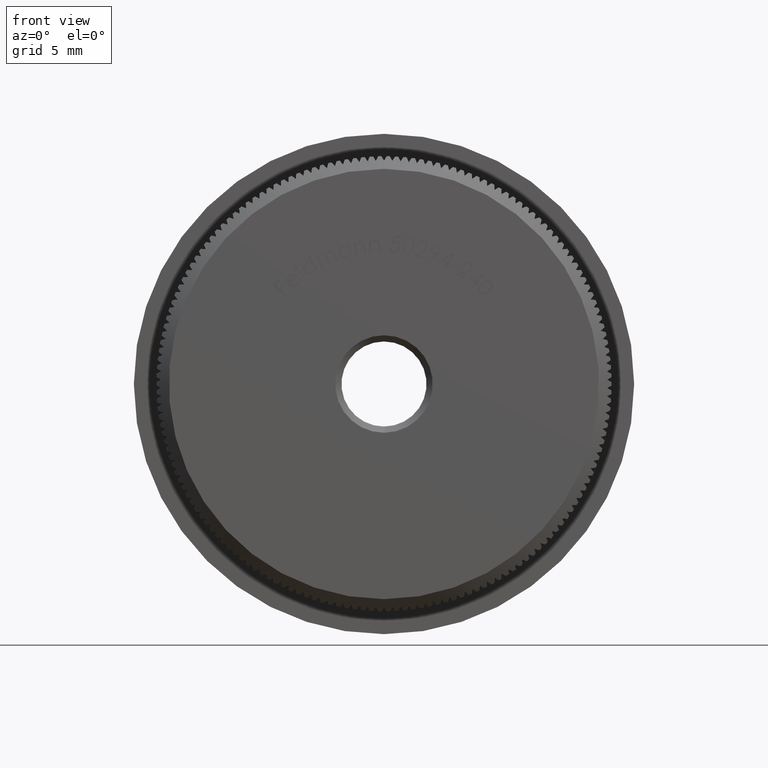
[diagram: clean part render]
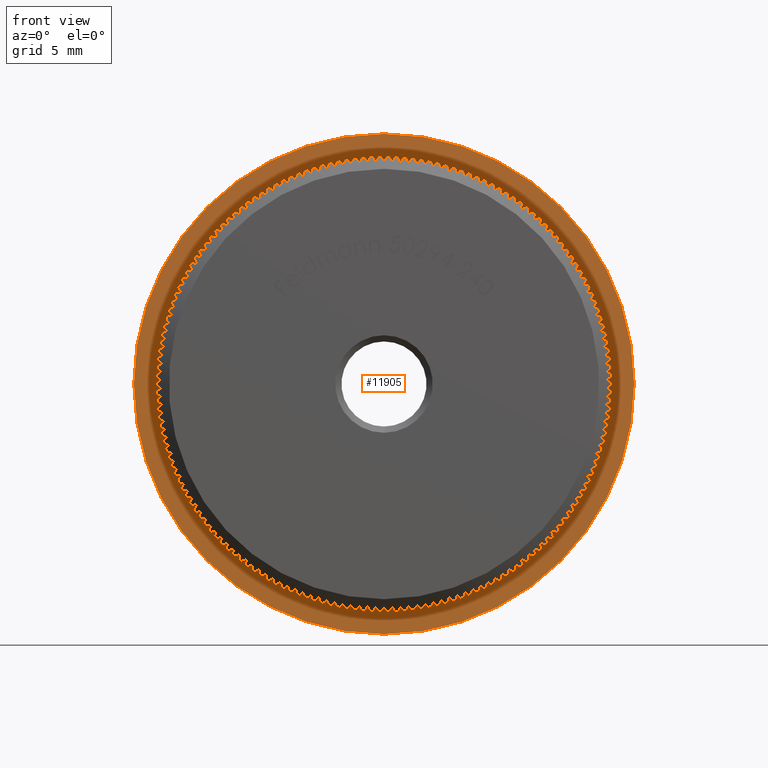
[diagram: same view with one face highlighted and labeled with its STEP entity id]
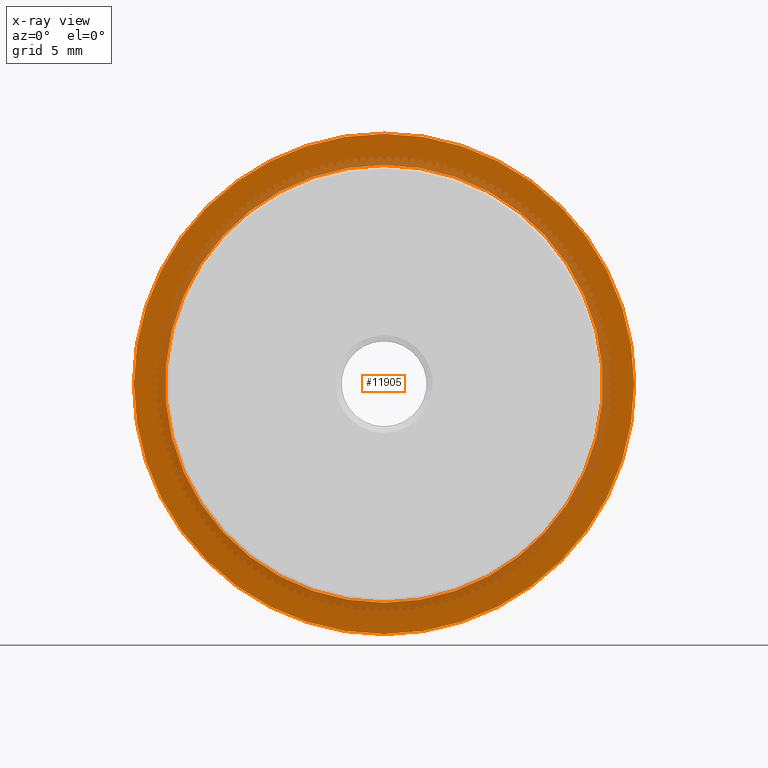
[diagram: x-ray of the same camera — body ghosted, the highlighted face saturated]
A machine part, front view. The second image highlights one B-rep face of the part: STEP entity #11905.
The next image is the same camera in x-ray: the body ghosted, the highlighted face saturated — about 24% of this face is hidden behind the body in this view.
In plain terms, the highlighted planar face has unit normal (0, -1, -0).
Its self-contained STEP definition (entity closure, byte-faithful):
#150 = DIRECTION ( 'NONE',  ( -0.0000000000000000000, -1.000000000000000000, -0.0000000000000000000 ) ) ;
#420 = VERTEX_POINT ( 'NONE', #22964 ) ;
#450 = AXIS2_PLACEMENT_3D ( 'NONE', #8547, #15742, #15461 ) ;
#1110 = CIRCLE ( 'NONE', #29091, 17.50000000000000000 ) ;
#1898 = ORIENTED_EDGE ( 'NONE', *, *, #20476, .F. ) ;
#2481 = FACE_BOUND ( 'NONE', #21005, .T. ) ;
#5134 = ORIENTED_EDGE ( 'NONE', *, *, #22450, .T. ) ;
#5556 = EDGE_LOOP ( 'NONE', ( #5134, #7764 ) ) ;
#5704 = CARTESIAN_POINT ( 'NONE',  ( 2.449293598294706500E-015, 8.000000000000000000, 20.00000000000000000 ) ) ;
#7764 = ORIENTED_EDGE ( 'NONE', *, *, #28176, .T. ) ;
#8090 = CIRCLE ( 'NONE', #24201, 20.00000000000000000 ) ;
#8547 = CARTESIAN_POINT ( 'NONE',  ( 0.0000000000000000000, 8.000000000000000000, 0.0000000000000000000 ) ) ;
#8661 = CIRCLE ( 'NONE', #10429, 20.00000000000000000 ) ;
#9376 = DIRECTION ( 'NONE',  ( 0.0000000000000000000, 0.0000000000000000000, -1.000000000000000000 ) ) ;
#10429 = AXIS2_PLACEMENT_3D ( 'NONE', #10944, #10541, #10842 ) ;
#10541 = DIRECTION ( 'NONE',  ( -0.0000000000000000000, -1.000000000000000000, -0.0000000000000000000 ) ) ;
#10842 = DIRECTION ( 'NONE',  ( 0.0000000000000000000, 0.0000000000000000000, -1.000000000000000000 ) ) ;
#10944 = CARTESIAN_POINT ( 'NONE',  ( 0.0000000000000000000, 8.000000000000000000, 0.0000000000000000000 ) ) ;
#11905 = ADVANCED_FACE ( 'NONE', ( #24450, #2481 ), #23621, .T. ) ;
#11976 = DIRECTION ( 'NONE',  ( 0.0000000000000000000, -1.000000000000000000, -0.0000000000000000000 ) ) ;
#12093 = AXIS2_PLACEMENT_3D ( 'NONE', #21574, #11976, #9376 ) ;
#12578 = DIRECTION ( 'NONE',  ( 0.0000000000000000000, 0.0000000000000000000, -1.000000000000000000 ) ) ;
#12852 = VERTEX_POINT ( 'NONE', #13138 ) ;
#13138 = CARTESIAN_POINT ( 'NONE',  ( 2.185994536478025400E-015, 8.000000000000000000, 17.50000000000000000 ) ) ;
#15395 = CARTESIAN_POINT ( 'NONE',  ( 0.0000000000000000000, 8.000000000000000000, -17.50000000000000000 ) ) ;
#15461 = DIRECTION ( 'NONE',  ( 0.0000000000000000000, 0.0000000000000000000, -1.000000000000000000 ) ) ;
#15742 = DIRECTION ( 'NONE',  ( -0.0000000000000000000, -1.000000000000000000, -0.0000000000000000000 ) ) ;
#17069 = CARTESIAN_POINT ( 'NONE',  ( 0.0000000000000000000, 8.000000000000000000, 0.0000000000000000000 ) ) ;
#17398 = EDGE_CURVE ( 'NONE', #12852, #18150, #21311, .T. ) ;
#18150 = VERTEX_POINT ( 'NONE', #15395 ) ;
#19002 = DIRECTION ( 'NONE',  ( 0.0000000000000000000, 0.0000000000000000000, -1.000000000000000000 ) ) ;
#20476 = EDGE_CURVE ( 'NONE', #18150, #12852, #1110, .T. ) ;
#21005 = EDGE_LOOP ( 'NONE', ( #1898, #30313 ) ) ;
#21311 = CIRCLE ( 'NONE', #450, 17.50000000000000000 ) ;
#21574 = CARTESIAN_POINT ( 'NONE',  ( 17.50000000000000000, 8.000000000000000000, 0.0000000000000000000 ) ) ;
#22059 = DIRECTION ( 'NONE',  ( -0.0000000000000000000, -1.000000000000000000, -0.0000000000000000000 ) ) ;
#22450 = EDGE_CURVE ( 'NONE', #420, #23838, #8090, .T. ) ;
#22964 = CARTESIAN_POINT ( 'NONE',  ( 0.0000000000000000000, 8.000000000000000000, -20.00000000000000000 ) ) ;
#23621 = PLANE ( 'NONE',  #12093 ) ;
#23838 = VERTEX_POINT ( 'NONE', #5704 ) ;
#24201 = AXIS2_PLACEMENT_3D ( 'NONE', #26120, #150, #19002 ) ;
#24450 = FACE_OUTER_BOUND ( 'NONE', #5556, .T. ) ;
#26120 = CARTESIAN_POINT ( 'NONE',  ( 0.0000000000000000000, 8.000000000000000000, 0.0000000000000000000 ) ) ;
#28176 = EDGE_CURVE ( 'NONE', #23838, #420, #8661, .T. ) ;
#29091 = AXIS2_PLACEMENT_3D ( 'NONE', #17069, #22059, #12578 ) ;
#30313 = ORIENTED_EDGE ( 'NONE', *, *, #17398, .F. ) ;